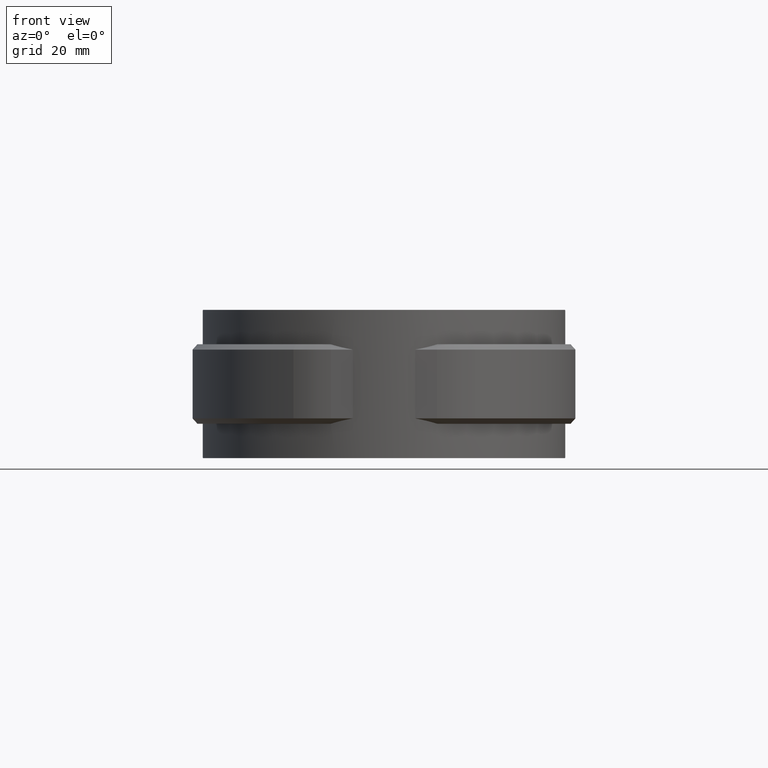
[diagram: clean part render]
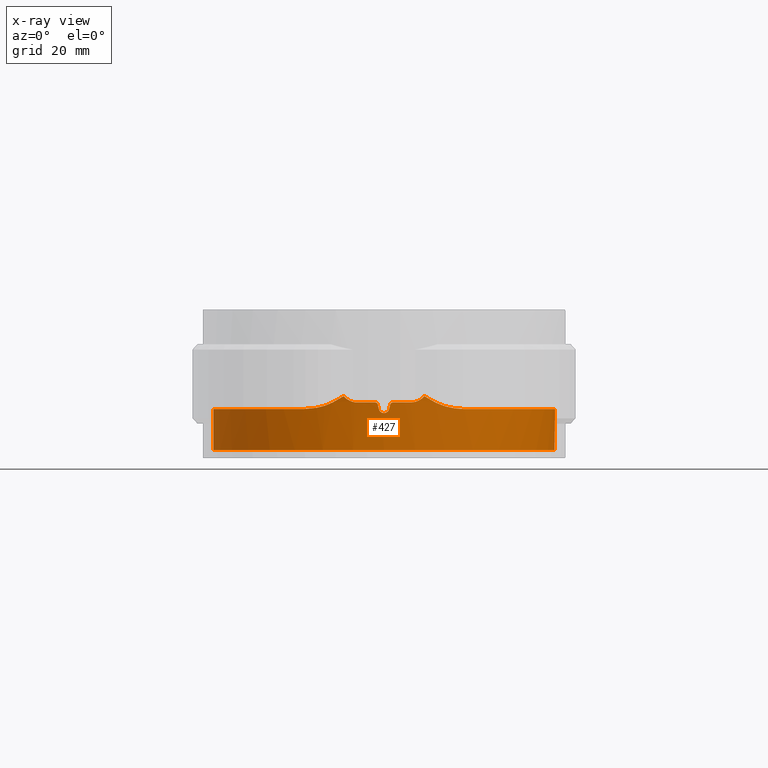
[diagram: x-ray — body ghosted, one internal face saturated and labeled with its STEP entity id]
A machine part, front view, then the same camera in x-ray: the body is ghosted and one INTERNAL B-rep face — a face not visible from any outside direction — is saturated and labeled: STEP entity #427.
In plain terms, the highlighted cylindrical surface (partial cylindrical patch) has radius 32.3 mm, axis along (0, 0, -1).
Its self-contained STEP definition (entity closure, byte-faithful):
#427 = ADVANCED_FACE( '', ( #862 ), #863, .F. );
#862 = FACE_OUTER_BOUND( '', #1888, .T. );
#863 = CYLINDRICAL_SURFACE( '', #1889, 32.3000000000000 );
#1888 = EDGE_LOOP( '', ( #4135, #4136, #4137, #4138, #4139, #4140, #4141, #4142, #4143, #4144, #4145, #4146, #4147, #4148, #4149, #4150, #4151, #4152 ) );
#1889 = AXIS2_PLACEMENT_3D( '', #4153, #4154, #4155 );
#4135 = ORIENTED_EDGE( '', *, *, #7240, .T. );
#4136 = ORIENTED_EDGE( '', *, *, #7241, .T. );
#4137 = ORIENTED_EDGE( '', *, *, #7242, .T. );
#4138 = ORIENTED_EDGE( '', *, *, #7243, .T. );
#4139 = ORIENTED_EDGE( '', *, *, #7244, .T. );
#4140 = ORIENTED_EDGE( '', *, *, #7245, .F. );
#4141 = ORIENTED_EDGE( '', *, *, #7246, .F. );
#4142 = ORIENTED_EDGE( '', *, *, #7247, .T. );
#4143 = ORIENTED_EDGE( '', *, *, #7248, .T. );
#4144 = ORIENTED_EDGE( '', *, *, #7249, .T. );
#4145 = ORIENTED_EDGE( '', *, *, #7250, .T. );
#4146 = ORIENTED_EDGE( '', *, *, #7251, .T. );
#4147 = ORIENTED_EDGE( '', *, *, #7252, .T. );
#4148 = ORIENTED_EDGE( '', *, *, #7229, .T. );
#4149 = ORIENTED_EDGE( '', *, *, #7224, .T. );
#4150 = ORIENTED_EDGE( '', *, *, #7227, .T. );
#4151 = ORIENTED_EDGE( '', *, *, #7253, .T. );
#4152 = ORIENTED_EDGE( '', *, *, #7254, .T. );
#4153 = CARTESIAN_POINT( '', ( 0.000000000000000, 0.000000000000000, 0.000000000000000 ) );
#4154 = DIRECTION( '', ( 0.000000000000000, 0.000000000000000, -1.00000000000000 ) );
#4155 = DIRECTION( '', ( 1.00000000000000, -6.12303176911189E-017, 0.000000000000000 ) );
#7224 = EDGE_CURVE( '', #8295, #8296, #8297, .T. );
#7227 = EDGE_CURVE( '', #8296, #8300, #8301, .T. );
#7229 = EDGE_CURVE( '', #8303, #8295, #8304, .T. );
#7240 = EDGE_CURVE( '', #8324, #8325, #8326, .T. );
#7241 = EDGE_CURVE( '', #8325, #8327, #8328, .T. );
#7242 = EDGE_CURVE( '', #8327, #8329, #8330, .T. );
#7243 = EDGE_CURVE( '', #8329, #8331, #8332, .T. );
#7244 = EDGE_CURVE( '', #8331, #8333, #8334, .T. );
#7245 = EDGE_CURVE( '', #8335, #8333, #8336, .T. );
#7246 = EDGE_CURVE( '', #8337, #8335, #8338, .T. );
#7247 = EDGE_CURVE( '', #8337, #8339, #8340, .T. );
#7248 = EDGE_CURVE( '', #8339, #8341, #8342, .T. );
#7249 = EDGE_CURVE( '', #8341, #8343, #8344, .T. );
#7250 = EDGE_CURVE( '', #8343, #8345, #8346, .T. );
#7251 = EDGE_CURVE( '', #8345, #8347, #8348, .T. );
#7252 = EDGE_CURVE( '', #8347, #8303, #8349, .F. );
#7253 = EDGE_CURVE( '', #8300, #8350, #8351, .F. );
#7254 = EDGE_CURVE( '', #8350, #8324, #8352, .T. );
#8295 = VERTEX_POINT( '', #10974 );
#8296 = VERTEX_POINT( '', #10975 );
#8297 = B_SPLINE_CURVE_WITH_KNOTS( '', 3, ( #10976, #10977, #10978, #10979, #10980, #10981, #10982, #10983, #10984, #10985 ), .UNSPECIFIED., .F., .F., ( 4, 2, 2, 2, 4 ), ( 3.60405501852931E-018, 0.000671591553170124, 0.00134318310634025, 0.00201477465951037, 0.00268636621268049 ), .UNSPECIFIED. );
#8300 = VERTEX_POINT( '', #10990 );
#8301 = ELLIPSE( '', #10991, 147.144594568094, 32.3000000000000 );
#8303 = VERTEX_POINT( '', #10994 );
#8304 = ELLIPSE( '', #10995, 147.144519506236, 32.3000000000000 );
#8324 = VERTEX_POINT( '', #11024 );
#8325 = VERTEX_POINT( '', #11025 );
#8326 = B_SPLINE_CURVE_WITH_KNOTS( '', 3, ( #11026, #11027, #11028, #11029, #11030, #11031, #11032, #11033, #11034, #11035 ), .UNSPECIFIED., .F., .F., ( 4, 2, 2, 2, 4 ), ( 2.60208521396521E-018, 0.000750979182285230, 0.00150195836457046, 0.00225293754685569, 0.00300391672914092 ), .UNSPECIFIED. );
#8327 = VERTEX_POINT( '', #11036 );
#8328 = B_SPLINE_CURVE_WITH_KNOTS( '', 3, ( #11037, #11038, #11039, #11040 ), .UNSPECIFIED., .F., .F., ( 4, 4 ), ( 1.58707029425189E-015, 0.00249413875487807 ), .UNSPECIFIED. );
#8329 = VERTEX_POINT( '', #11041 );
#8330 = B_SPLINE_CURVE_WITH_KNOTS( '', 3, ( #11042, #11043, #11044, #11045, #11046, #11047, #11048, #11049, #11050, #11051 ), .UNSPECIFIED., .F., .F., ( 4, 2, 2, 2, 4 ), ( 2.57885184514585E-017, 0.00151636652569794, 0.00303273305139586, 0.00454909957709378, 0.00606546610279169 ), .UNSPECIFIED. );
#8331 = VERTEX_POINT( '', #11052 );
#8332 = B_SPLINE_CURVE_WITH_KNOTS( '', 3, ( #11053, #11054, #11055, #11056, #11057, #11058, #11059, #11060, #11061, #11062, #11063, #11064, #11065, #11066, #11067, #11068, #11069, #11070, #11071, #11072, #11073, #11074, #11075, #11076, #11077, #11078, #11079, #11080, #11081, #11082, #11083, #11084, #11085, #11086, #11087, #11088, #11089, #11090, #11091, #11092, #11093, #11094, #11095, #11096, #11097, #11098, #11099, #11100 ), .UNSPECIFIED., .F., .F., ( 4, 2, 2, 2, 2, 2, 2, 2, 2, 2, 2, 2, 2, 2, 2, 2, 2, 2, 2, 2, 2, 2, 2, 4 ), ( 3.95577815330262E-017, 0.00489375718248997, 0.00978751436497989, 0.0122343929562248, 0.0146812715474698, 0.0195750287299597, 0.0220219073212047, 0.0244687859124497, 0.0293625430949396, 0.0318094216861846, 0.0342563002774296, 0.0391500574599195, 0.0415969360511645, 0.0440438146424094, 0.0489375718248994, 0.0513844504161443, 0.0538313290073893, 0.0587250861898792, 0.0636188433723691, 0.0660657219636141, 0.0685126005548591, 0.0734063577373490, 0.0758532363285940, 0.0783001149198389 ), .UNSPECIFIED. );
#8333 = VERTEX_POINT( '', #11101 );
#8334 = LINE( '', #11102, #11103 );
#8335 = VERTEX_POINT( '', #11104 );
#8336 = CIRCLE( '', #11105, 32.3000000000000 );
#8337 = VERTEX_POINT( '', #11106 );
#8338 = LINE( '', #11107, #11108 );
#8339 = VERTEX_POINT( '', #11109 );
#8340 = B_SPLINE_CURVE_WITH_KNOTS( '', 3, ( #11110, #11111, #11112, #11113, #11114, #11115, #11116, #11117, #11118, #11119, #11120, #11121, #11122, #11123, #11124, #11125, #11126, #11127, #11128, #11129, #11130, #11131, #11132, #11133, #11134, #11135, #11136, #11137, #11138, #11139, #11140, #11141, #11142, #11143, #11144, #11145, #11146, #11147, #11148, #11149, #11150, #11151, #11152, #11153, #11154, #11155, #11156, #11157 ), .UNSPECIFIED., .F., .F., ( 4, 2, 2, 2, 2, 2, 2, 2, 2, 2, 2, 2, 2, 2, 2, 2, 2, 2, 2, 2, 2, 2, 2, 4 ), ( 1.17973950996548E-017, 0.00489357477371321, 0.00978714954742641, 0.0122339369342830, 0.0146807243211396, 0.0195742990948528, 0.0220210864817094, 0.0244678738685661, 0.0293614486422793, 0.0318082360291359, 0.0342550234159925, 0.0391485981897057, 0.0415953855765623, 0.0440421729634189, 0.0489357477371321, 0.0513825351239887, 0.0538293225108453, 0.0587228972845585, 0.0636164720582717, 0.0660632594451283, 0.0685100468319849, 0.0734036216056981, 0.0758504089925547, 0.0782971963794113 ), .UNSPECIFIED. );
#8341 = VERTEX_POINT( '', #11158 );
#8342 = B_SPLINE_CURVE_WITH_KNOTS( '', 3, ( #11159, #11160, #11161, #11162, #11163, #11164, #11165, #11166, #11167, #11168 ), .UNSPECIFIED., .F., .F., ( 4, 2, 2, 2, 4 ), ( 0.000000000000000, 0.00151660525216780, 0.00303321050433560, 0.00454981575650341, 0.00606642100867121 ), .UNSPECIFIED. );
#8343 = VERTEX_POINT( '', #11169 );
#8344 = B_SPLINE_CURVE_WITH_KNOTS( '', 3, ( #11170, #11171, #11172, #11173 ), .UNSPECIFIED., .F., .F., ( 4, 4 ), ( 1.73472347597681E-018, 0.00249413866226140 ), .UNSPECIFIED. );
#8345 = VERTEX_POINT( '', #11174 );
#8346 = B_SPLINE_CURVE_WITH_KNOTS( '', 3, ( #11175, #11176, #11177, #11178, #11179, #11180, #11181, #11182, #11183, #11184 ), .UNSPECIFIED., .F., .F., ( 4, 2, 2, 2, 4 ), ( 7.35980840008019E-018, 0.000750995190998774, 0.00150199038199754, 0.00225298557299631, 0.00300398076399508 ), .UNSPECIFIED. );
#8347 = VERTEX_POINT( '', #11185 );
#8348 = CIRCLE( '', #11186, 32.3000000000000 );
#8349 = B_SPLINE_CURVE_WITH_KNOTS( '', 3, ( #11187, #11188, #11189, #11190, #11191, #11192 ), .UNSPECIFIED., .F., .F., ( 4, 2, 4 ), ( 0.000892075269127601, 0.00122803793503722, 0.00156400060094684 ), .UNSPECIFIED. );
#8350 = VERTEX_POINT( '', #11193 );
#8351 = B_SPLINE_CURVE_WITH_KNOTS( '', 3, ( #11194, #11195, #11196, #11197, #11198, #11199 ), .UNSPECIFIED., .F., .F., ( 4, 2, 4 ), ( 0.00156451060214018, 0.00190047663938305, 0.00223644267662592 ), .UNSPECIFIED. );
#8352 = CIRCLE( '', #11200, 32.3000000000000 );
#10974 = CARTESIAN_POINT( '', ( -0.975609757981845, -32.2852626689041, -17.2195121867475 ) );
#10975 = CARTESIAN_POINT( '', ( 0.975610000000007, -32.2852626615907, -17.2195120000000 ) );
#10976 = CARTESIAN_POINT( '', ( -0.975609757981839, -32.2852626689041, -17.2195121867475 ) );
#10977 = CARTESIAN_POINT( '', ( -0.925762188681970, -32.2867689838912, -17.4410568490621 ) );
#10978 = CARTESIAN_POINT( '', ( -0.802004359651511, -32.2905285910752, -17.6390185041707 ) );
#10979 = CARTESIAN_POINT( '', ( -0.447400802898646, -32.2973881328740, -17.9227069771237 ) );
#10980 = CARTESIAN_POINT( '', ( -0.227087173400432, -32.3000000049666, -18.0000001411462 ) );
#10981 = CARTESIAN_POINT( '', ( 0.227088586258967, -32.2999999950334, -17.9999998657208 ) );
#10982 = CARTESIAN_POINT( '', ( 0.447419743009224, -32.2973878161037, -17.9226952740511 ) );
#10983 = CARTESIAN_POINT( '', ( 0.802003487058102, -32.2905285583402, -17.6390160727853 ) );
#10984 = CARTESIAN_POINT( '', ( 0.925762472206869, -32.2867689756975, -17.4410566758585 ) );
#10985 = CARTESIAN_POINT( '', ( 0.975610000000002, -32.2852626615907, -17.2195120000000 ) );
#10990 = CARTESIAN_POINT( '', ( 1.16219510888042, -32.2790845986824, -16.3902439605210 ) );
#10991 = AXIS2_PLACEMENT_3D( '', #13860, #13861, #13862 );
#10994 = CARTESIAN_POINT( '', ( -1.16219499999879, -32.2790846026026, -16.3902439999999 ) );
#10995 = AXIS2_PLACEMENT_3D( '', #13864, #13865, #13866 );
#11024 = CARTESIAN_POINT( '', ( 4.99999999999994, -31.9106565272481, -16.0000000000000 ) );
#11025 = CARTESIAN_POINT( '', ( 7.63057140055355, -31.3857352964855, -14.8086996570774 ) );
#11026 = CARTESIAN_POINT( '', ( 4.99999999999994, -31.9106565272481, -16.0000000000000 ) );
#11027 = CARTESIAN_POINT( '', ( 5.25090568169599, -31.8713427510677, -16.0000000000000 ) );
#11028 = CARTESIAN_POINT( '', ( 5.49681063218783, -31.8297837689344, -15.9733344217791 ) );
#11029 = CARTESIAN_POINT( '', ( 5.97916506228837, -31.7427101404584, -15.8692890333962 ) );
#11030 = CARTESIAN_POINT( '', ( 6.21817768871495, -31.6966407559162, -15.7904549137724 ) );
#11031 = CARTESIAN_POINT( '', ( 6.66837379638051, -31.6049926418246, -15.5866777117806 ) );
#11032 = CARTESIAN_POINT( '', ( 6.88075086922171, -31.5592636372430, -15.4621588648130 ) );
#11033 = CARTESIAN_POINT( '', ( 7.27996367811589, -31.4695723309773, -15.1670910368678 ) );
#11034 = CARTESIAN_POINT( '', ( 7.46517406127047, -31.4259470740634, -14.9971561802600 ) );
#11035 = CARTESIAN_POINT( '', ( 7.63057140055350, -31.3857352964855, -14.8086996570775 ) );
#11036 = CARTESIAN_POINT( '', ( 9.73614354038361, -30.7976867469141, -16.0093215775400 ) );
#11037 = CARTESIAN_POINT( '', ( 7.63057140055232, -31.3857352964858, -14.8086996570764 ) );
#11038 = CARTESIAN_POINT( '', ( 8.31295211211873, -31.2198333447622, -15.2578134176659 ) );
#11039 = CARTESIAN_POINT( '', ( 9.02108456668580, -31.0237399847748, -15.6469781091750 ) );
#11040 = CARTESIAN_POINT( '', ( 9.73614354038358, -30.7976867469141, -16.0093215775401 ) );
#11041 = CARTESIAN_POINT( '', ( 15.1649305720989, -28.5186788089826, -17.2483984082262 ) );
#11042 = CARTESIAN_POINT( '', ( 9.73614370037982, -30.7976866963341, -16.0093212412774 ) );
#11043 = CARTESIAN_POINT( '', ( 10.1693203797140, -30.6607455539932, -16.2360283244624 ) );
#11044 = CARTESIAN_POINT( '', ( 10.6151351456380, -30.5096998491709, -16.4202170068254 ) );
#11045 = CARTESIAN_POINT( '', ( 11.5218490207409, -30.1789641006763, -16.7279702561699 ) );
#11046 = CARTESIAN_POINT( '', ( 11.9806075254181, -30.0000333515199, -16.8502646584207 ) );
#11047 = CARTESIAN_POINT( '', ( 12.8978436308557, -29.6172683994390, -17.0439695720854 ) );
#11048 = CARTESIAN_POINT( '', ( 13.3570789972966, -29.4131143948769, -17.1153756413133 ) );
#11049 = CARTESIAN_POINT( '', ( 14.2661966665545, -28.9830724806279, -17.2140121823947 ) );
#11050 = CARTESIAN_POINT( '', ( 14.7173740577312, -28.7566661046365, -17.2414117674296 ) );
#11051 = CARTESIAN_POINT( '', ( 15.1649292525340, -28.5186767008156, -17.2484111032335 ) );
#11052 = CARTESIAN_POINT( '', ( 6.98126801152735, 31.5365168804550, -17.2464995895210 ) );
#11053 = CARTESIAN_POINT( '', ( 15.1649294062286, -28.5186766190878, -17.2484316111972 ) );
#11054 = CARTESIAN_POINT( '', ( 16.6248640415951, -27.7423500742500, -17.2484924777558 ) );
#11055 = CARTESIAN_POINT( '', ( 18.0070728316045, -26.8644131601845, -17.2461372540545 ) );
#11056 = CARTESIAN_POINT( '', ( 20.6222028384541, -24.9133722425018, -17.2428430109154 ) );
#11057 = CARTESIAN_POINT( '', ( 21.8551143134799, -23.8402553345379, -17.2421236528013 ) );
#11058 = CARTESIAN_POINT( '', ( 23.5891760450771, -22.0798374661629, -17.2434277074060 ) );
#11059 = CARTESIAN_POINT( '', ( 24.1474036916480, -21.4678028728614, -17.2442125031697 ) );
#11060 = CARTESIAN_POINT( '', ( 25.2065663482645, -20.2136755234171, -17.2459911305783 ) );
#11061 = CARTESIAN_POINT( '', ( 25.7100143454467, -19.5691408589762, -17.2469849327992 ) );
#11062 = CARTESIAN_POINT( '', ( 27.1432733893104, -17.5840028468862, -17.2490324005373 ) );
#11063 = CARTESIAN_POINT( '', ( 27.9964433480973, -16.1921620203098, -17.2479442498568 ) );
#11064 = CARTESIAN_POINT( '', ( 29.1198763640437, -13.9998942246577, -17.2455806263232 ) );
#11065 = CARTESIAN_POINT( '', ( 29.4694545684283, -13.2483517264472, -17.2447794439587 ) );
#11066 = CARTESIAN_POINT( '', ( 30.1060184551311, -11.7300992667418, -17.2437050378610 ) );
#11067 = CARTESIAN_POINT( '', ( 30.3936055166670, -10.9629273772758, -17.2434301165872 ) );
#11068 = CARTESIAN_POINT( '', ( 31.1664229822346, -8.63783598022149, -17.2436023086149 ) );
#11069 = CARTESIAN_POINT( '', ( 31.5622152867184, -7.05647333519484, -17.2452204029638 ) );
#11070 = CARTESIAN_POINT( '', ( 31.9758559300025, -4.63723516522406, -17.2475243673472 ) );
#11071 = CARTESIAN_POINT( '', ( 32.0836025238480, -3.82292379119005, -17.2482285320809 ) );
#11072 = CARTESIAN_POINT( '', ( 32.2370661276824, -2.17804148283277, -17.2485716427092 ) );
#11073 = CARTESIAN_POINT( '', ( 32.2819395955183, -1.35536149849789, -17.2480564760935 ) );
#11074 = CARTESIAN_POINT( '', ( 32.3227503138912, 1.10105744948372, -17.2457416182308 ) );
#11075 = CARTESIAN_POINT( '', ( 32.2259139620029, 2.72859871897863, -17.2435007369168 ) );
#11076 = CARTESIAN_POINT( '', ( 31.8964361333591, 5.15495464620680, -17.2424444047410 ) );
#11077 = CARTESIAN_POINT( '', ( 31.7557753558362, 5.96123664065741, -17.2424325507848 ) );
#11078 = CARTESIAN_POINT( '', ( 31.4114721154427, 7.56868748707544, -17.2431089185948 ) );
#11079 = CARTESIAN_POINT( '', ( 31.2068527862181, 8.37246057471097, -17.2438021546124 ) );
#11080 = CARTESIAN_POINT( '', ( 30.5074215449412, 10.7373301272876, -17.2463361548174 ) );
#11081 = CARTESIAN_POINT( '', ( 29.9261197274425, 12.2627713555516, -17.2487001942901 ) );
#11082 = CARTESIAN_POINT( '', ( 28.8859190537696, 14.4761262509682, -17.2482689410078 ) );
#11083 = CARTESIAN_POINT( '', ( 28.5110208438481, 15.2013885394376, -17.2475999089365 ) );
#11084 = CARTESIAN_POINT( '', ( 27.7041341139232, 16.6265292855438, -17.2461071727879 ) );
#11085 = CARTESIAN_POINT( '', ( 27.2714980663351, 17.3273736449398, -17.2452833394269 ) );
#11086 = CARTESIAN_POINT( '', ( 25.8893531191876, 19.3845642696429, -17.2434744581783 ) );
#11087 = CARTESIAN_POINT( '', ( 24.8749632335095, 20.6684208609962, -17.2433681486811 ) );
#11088 = CARTESIAN_POINT( '', ( 22.6676234901476, 23.0678621043351, -17.2454909406875 ) );
#11089 = CARTESIAN_POINT( '', ( 21.4746619776963, 24.1834357756161, -17.2477146822928 ) );
#11090 = CARTESIAN_POINT( '', ( 19.5473109165953, 25.7268352925961, -17.2486327284787 ) );
#11091 = CARTESIAN_POINT( '', ( 18.8808538327228, 26.2197909102398, -17.2483115010787 ) );
#11092 = CARTESIAN_POINT( '', ( 17.5243897116743, 27.1451624062686, -17.2467738153410 ) );
#11093 = CARTESIAN_POINT( '', ( 16.8316821347465, 27.5798854578572, -17.2456808429222 ) );
#11094 = CARTESIAN_POINT( '', ( 14.7109484071743, 28.8017433218220, -17.2427293542686 ) );
#11095 = CARTESIAN_POINT( '', ( 13.2405541646989, 29.5070362661774, -17.2413876070178 ) );
#11096 = CARTESIAN_POINT( '', ( 10.9489043246725, 30.3987394482012, -17.2420596597703 ) );
#11097 = CARTESIAN_POINT( '', ( 10.1688369077599, 30.6686733319852, -17.2426863956130 ) );
#11098 = CARTESIAN_POINT( '', ( 8.58743168248610, 31.1484957116596, -17.2444234868112 ) );
#11099 = CARTESIAN_POINT( '', ( 7.78848096172281, 31.3578234004791, -17.2455287806024 ) );
#11100 = CARTESIAN_POINT( '', ( 6.98126801152735, 31.5365168804550, -17.2464995895211 ) );
#11101 = CARTESIAN_POINT( '', ( 6.98126801152736, 31.5365168804550, -25.0000000000000 ) );
#11102 = CARTESIAN_POINT( '', ( 6.98126801152735, 31.5365168804550, 0.000000000000000 ) );
#11103 = VECTOR( '', #13884, 1000.00000000000 );
#11104 = CARTESIAN_POINT( '', ( -6.98126801152738, 31.5365168804550, -25.0000000000000 ) );
#11105 = AXIS2_PLACEMENT_3D( '', #13885, #13886, #13887 );
#11106 = CARTESIAN_POINT( '', ( -6.98126801152738, 31.5365168804550, -17.2464995895211 ) );
#11107 = CARTESIAN_POINT( '', ( -6.98126801152738, 31.5365168804550, 0.000000000000000 ) );
#11108 = VECTOR( '', #13888, 1000.00000000000 );
#11109 = CARTESIAN_POINT( '', ( -15.1675347315048, -28.5172389157751, -17.2484664920159 ) );
#11110 = CARTESIAN_POINT( '', ( -6.98126801152739, 31.5365168804550, -17.2464995895211 ) );
#11111 = CARTESIAN_POINT( '', ( -8.59563211257114, 31.1791436010819, -17.2445580460079 ) );
#11112 = CARTESIAN_POINT( '', ( -10.1622968016113, 30.7030762939560, -17.2423100073212 ) );
#11113 = CARTESIAN_POINT( '', ( -13.2040088867511, 29.5229625802547, -17.2413790382256 ) );
#11114 = CARTESIAN_POINT( '', ( -14.6790502680755, 28.8189012082444, -17.2426888617483 ) );
#11115 = CARTESIAN_POINT( '', ( -16.8208498399444, 27.5867251874493, -17.2456638529699 ) );
#11116 = CARTESIAN_POINT( '', ( -17.5224661349779, 27.1463956585428, -17.2467709593866 ) );
#11117 = CARTESIAN_POINT( '', ( -18.8785406488061, 26.2214477036065, -17.2483095521400 ) );
#11118 = CARTESIAN_POINT( '', ( -19.5360735133491, 25.7351489910229, -17.2486299884938 ) );
#11119 = CARTESIAN_POINT( '', ( -21.4481907989471, 24.2059777552668, -17.2477431700563 ) );
#11120 = CARTESIAN_POINT( '', ( -22.6426422053195, 23.0932345997415, -17.2455231502206 ) );
#11121 = CARTESIAN_POINT( '', ( -24.3116703149389, 21.2816087050985, -17.2439058608432 ) );
#11122 = CARTESIAN_POINT( '', ( -24.8495855256509, 20.6510442510915, -17.2436142299916 ) );
#11123 = CARTESIAN_POINT( '', ( -25.8691757537369, 19.3585452779761, -17.2437037448137 ) );
#11124 = CARTESIAN_POINT( '', ( -26.3515497258060, 18.6963315085071, -17.2440806334222 ) );
#11125 = CARTESIAN_POINT( '', ( -27.7183213025895, 16.6629110144925, -17.2458655827608 ) );
#11126 = CARTESIAN_POINT( '', ( -28.5228202161418, 15.2451881100879, -17.2480928621502 ) );
#11127 = CARTESIAN_POINT( '', ( -29.5687271464268, 13.0249619323336, -17.2485644525336 ) );
#11128 = CARTESIAN_POINT( '', ( -29.8904436547679, 12.2692141622250, -17.2480520041534 ) );
#11129 = CARTESIAN_POINT( '', ( -30.4784644168014, 10.7254577912167, -17.2464881705671 ) );
#11130 = CARTESIAN_POINT( '', ( -30.7418503636452, 9.94480871537403, -17.2454868003163 ) );
#11131 = CARTESIAN_POINT( '', ( -31.4385068616853, 7.58898036446878, -17.2429629489960 ) );
#11132 = CARTESIAN_POINT( '', ( -31.7807368242607, 5.99494276958687, -17.2420957130946 ) );
#11133 = CARTESIAN_POINT( '', ( -32.1125883046722, 3.56900761424066, -17.2431266025844 ) );
#11134 = CARTESIAN_POINT( '', ( -32.1928275565982, 2.75452464979194, -17.2438135023839 ) );
#11135 = CARTESIAN_POINT( '', ( -32.2912584137607, 1.11363467569638, -17.2455046974277 ) );
#11136 = CARTESIAN_POINT( '', ( -32.3092061535335, 0.284450882456527, -17.2465113381714 ) );
#11137 = CARTESIAN_POINT( '', ( -32.2681723661331, -2.18126349938969, -17.2488344345985 ) );
#11138 = CARTESIAN_POINT( '', ( -32.1163195908754, -3.80657463612476, -17.2483110234777 ) );
#11139 = CARTESIAN_POINT( '', ( -31.7064254652050, -6.21748203457887, -17.2460215691051 ) );
#11140 = CARTESIAN_POINT( '', ( -31.5393080965941, -7.01658815560496, -17.2451853459879 ) );
#11141 = CARTESIAN_POINT( '', ( -31.1432783758980, -8.60561889457034, -17.2439482064221 ) );
#11142 = CARTESIAN_POINT( '', ( -30.9140050208601, -9.39663445600842, -17.2435481231825 ) );
#11143 = CARTESIAN_POINT( '', ( -30.1328677457410, -11.7486196438606, -17.2433679378721 ) );
#11144 = CARTESIAN_POINT( '', ( -29.4991040199072, -13.2570766754538, -17.2447795679669 ) );
#11145 = CARTESIAN_POINT( '', ( -28.0145177077231, -16.1596416284469, -17.2479093638995 ) );
#11146 = CARTESIAN_POINT( '', ( -27.1636807708750, -17.5537421879104, -17.2490505716785 ) );
#11147 = CARTESIAN_POINT( '', ( -25.7197879348539, -19.5565810672917, -17.2470042727551 ) );
#11148 = CARTESIAN_POINT( '', ( -25.2095960463055, -20.2099061226707, -17.2459967214298 ) );
#11149 = CARTESIAN_POINT( '', ( -24.1503191071427, -21.4645317984866, -17.2442168986280 ) );
#11150 = CARTESIAN_POINT( '', ( -23.5992517225998, -22.0687761014369, -17.2434416805202 ) );
#11151 = CARTESIAN_POINT( '', ( -21.8829718927002, -23.8136049994802, -17.2421320751291 ) );
#11152 = CARTESIAN_POINT( '', ( -20.6550414108745, -24.8866727453653, -17.2428099277325 ) );
#11153 = CARTESIAN_POINT( '', ( -18.6857580645686, -26.3591397727121, -17.2452783104692 ) );
#11154 = CARTESIAN_POINT( '', ( -18.0064397440400, -26.8279862868925, -17.2462964025736 ) );
#11155 = CARTESIAN_POINT( '', ( -16.6112083128558, -27.7135432388633, -17.2479468178620 ) );
#11156 = CARTESIAN_POINT( '', ( -15.8974614006388, -28.1290631618628, -17.2485365509796 ) );
#11157 = CARTESIAN_POINT( '', ( -15.1675563594299, -28.5172795701750, -17.2484318543570 ) );
#11158 = CARTESIAN_POINT( '', ( -9.73614346072665, -30.7976867720962, -16.0093215371753 ) );
#11159 = CARTESIAN_POINT( '', ( -15.1675565293738, -28.5172794797864, -17.2484523276130 ) );
#11160 = CARTESIAN_POINT( '', ( -14.7198129681240, -28.7554219639155, -17.2414035946867 ) );
#11161 = CARTESIAN_POINT( '', ( -14.2683841717490, -28.9820014692358, -17.2141888121197 ) );
#11162 = CARTESIAN_POINT( '', ( -13.3586865364356, -29.4123900772558, -17.1156105097823 ) );
#11163 = CARTESIAN_POINT( '', ( -12.8991100201139, -29.6167198896899, -17.0441955062538 ) );
#11164 = CARTESIAN_POINT( '', ( -11.9815565968164, -29.9996572955866, -16.8505064923631 ) );
#11165 = CARTESIAN_POINT( '', ( -11.5223810050951, -30.1787623871058, -16.7281283341849 ) );
#11166 = CARTESIAN_POINT( '', ( -10.6155081668238, -30.5095714424845, -16.4203660797946 ) );
#11167 = CARTESIAN_POINT( '', ( -10.1695453188861, -30.6606744446794, -16.2361460546227 ) );
#11168 = CARTESIAN_POINT( '', ( -9.73614362122745, -30.7976867213567, -16.0093211998522 ) );
#11169 = CARTESIAN_POINT( '', ( -7.63057140055375, -31.3857352964854, -14.8086996570773 ) );
#11170 = CARTESIAN_POINT( '', ( -9.73614346072664, -30.7976867720962, -16.0093215371753 ) );
#11171 = CARTESIAN_POINT( '', ( -9.02108451414320, -31.0237399993509, -15.6469780799633 ) );
#11172 = CARTESIAN_POINT( '', ( -8.31295208667076, -31.2198333509491, -15.2578134009171 ) );
#11173 = CARTESIAN_POINT( '', ( -7.63057140055368, -31.3857352964854, -14.8086996570774 ) );
#11174 = CARTESIAN_POINT( '', ( -5.00000000000005, -31.9106565272481, -16.0000000000000 ) );
#11175 = CARTESIAN_POINT( '', ( -7.63057140055375, -31.3857352964854, -14.8086996570773 ) );
#11176 = CARTESIAN_POINT( '', ( -7.46515799146552, -31.4259509809909, -14.9971744904675 ) );
#11177 = CARTESIAN_POINT( '', ( -7.28308422969995, -31.4688398361867, -15.1642661243282 ) );
#11178 = CARTESIAN_POINT( '', ( -6.88703193314405, -31.5578831305955, -15.4580226612455 ) );
#11179 = CARTESIAN_POINT( '', ( -6.67026417690030, -31.6045933070442, -15.5856554282815 ) );
#11180 = CARTESIAN_POINT( '', ( -6.22018755969945, -31.6962459766999, -15.7897103461968 ) );
#11181 = CARTESIAN_POINT( '', ( -5.98643488331085, -31.7413519027289, -15.8672884537199 ) );
#11182 = CARTESIAN_POINT( '', ( -5.50104887973154, -31.8290635182343, -15.9728425431752 ) );
#11183 = CARTESIAN_POINT( '', ( -5.25089312619880, -31.8713447183568, -16.0000000000000 ) );
#11184 = CARTESIAN_POINT( '', ( -5.00000000000004, -31.9106565272481, -16.0000000000000 ) );
#11185 = CARTESIAN_POINT( '', ( -1.64999999892707, -32.2578285072560, -16.0000000000000 ) );
#11186 = AXIS2_PLACEMENT_3D( '', #13889, #13890, #13891 );
#11187 = CARTESIAN_POINT( '', ( -1.16219499999993, -32.2790846026026, -16.3902440000002 ) );
#11188 = CARTESIAN_POINT( '', ( -1.18682762161812, -32.2781977153183, -16.2807656795028 ) );
#11189 = CARTESIAN_POINT( '', ( -1.25015000162170, -32.2759168900706, -16.1795333823760 ) );
#11190 = CARTESIAN_POINT( '', ( -1.42534060914056, -32.2686549188099, -16.0394492456940 ) );
#11191 = CARTESIAN_POINT( '', ( -1.53793442256957, -32.2635607034213, -15.9999999997594 ) );
#11192 = CARTESIAN_POINT( '', ( -1.64999999892707, -32.2578285072560, -15.9999999999999 ) );
#11193 = CARTESIAN_POINT( '', ( 1.65000000000015, -32.2578285072012, -15.9999999999987 ) );
#11194 = CARTESIAN_POINT( '', ( 1.65000000000023, -32.2578285072011, -16.0000000000000 ) );
#11195 = CARTESIAN_POINT( '', ( 1.53793428369798, -32.2635607105284, -16.0000000000000 ) );
#11196 = CARTESIAN_POINT( '', ( 1.42534833251276, -32.2686545939472, -16.0394437148024 ) );
#11197 = CARTESIAN_POINT( '', ( 1.25014574610435, -32.2759170711842, -16.1795362123713 ) );
#11198 = CARTESIAN_POINT( '', ( 1.18682890446138, -32.2781976690469, -16.2807603637449 ) );
#11199 = CARTESIAN_POINT( '', ( 1.16219510888271, -32.2790845986823, -16.3902439605214 ) );
#11200 = AXIS2_PLACEMENT_3D( '', #13892, #13893, #13894 );
#13860 = CARTESIAN_POINT( '', ( 0.000000000000000, 0.000000000000000, -21.5555610922364 ) );
#13861 = DIRECTION( '', ( -0.975609806487721, 0.000000000000000, 0.219511971165564 ) );
#13862 = DIRECTION( '', ( 0.219511971165564, 0.000000000000000, 0.975609806487721 ) );
#13864 = CARTESIAN_POINT( '', ( 0.000000000000000, 0.000000000000000, -21.5555578794501 ) );
#13865 = DIRECTION( '', ( 0.975609781292650, 0.000000000000000, 0.219512083143750 ) );
#13866 = DIRECTION( '', ( -0.219512083143750, 0.000000000000000, 0.975609781292650 ) );
#13884 = DIRECTION( '', ( 0.000000000000000, 0.000000000000000, -1.00000000000000 ) );
#13885 = CARTESIAN_POINT( '', ( 0.000000000000000, 0.000000000000000, -25.0000000000000 ) );
#13886 = DIRECTION( '', ( 0.000000000000000, 0.000000000000000, 1.00000000000000 ) );
#13887 = DIRECTION( '', ( 1.00000000000000, 0.000000000000000, 0.000000000000000 ) );
#13888 = DIRECTION( '', ( 0.000000000000000, 0.000000000000000, -1.00000000000000 ) );
#13889 = CARTESIAN_POINT( '', ( 0.000000000000000, 0.000000000000000, -16.0000000000000 ) );
#13890 = DIRECTION( '', ( -2.29561756065156E-049, 3.74915180455535E-033, 1.00000000000000 ) );
#13891 = DIRECTION( '', ( 0.000000000000000, -1.00000000000000, 3.74915180455535E-033 ) );
#13892 = CARTESIAN_POINT( '', ( 0.000000000000000, 0.000000000000000, -16.0000000000000 ) );
#13893 = DIRECTION( '', ( -2.29561756065156E-049, 3.74915180455535E-033, 1.00000000000000 ) );
#13894 = DIRECTION( '', ( 0.000000000000000, -1.00000000000000, 3.74915180455535E-033 ) );